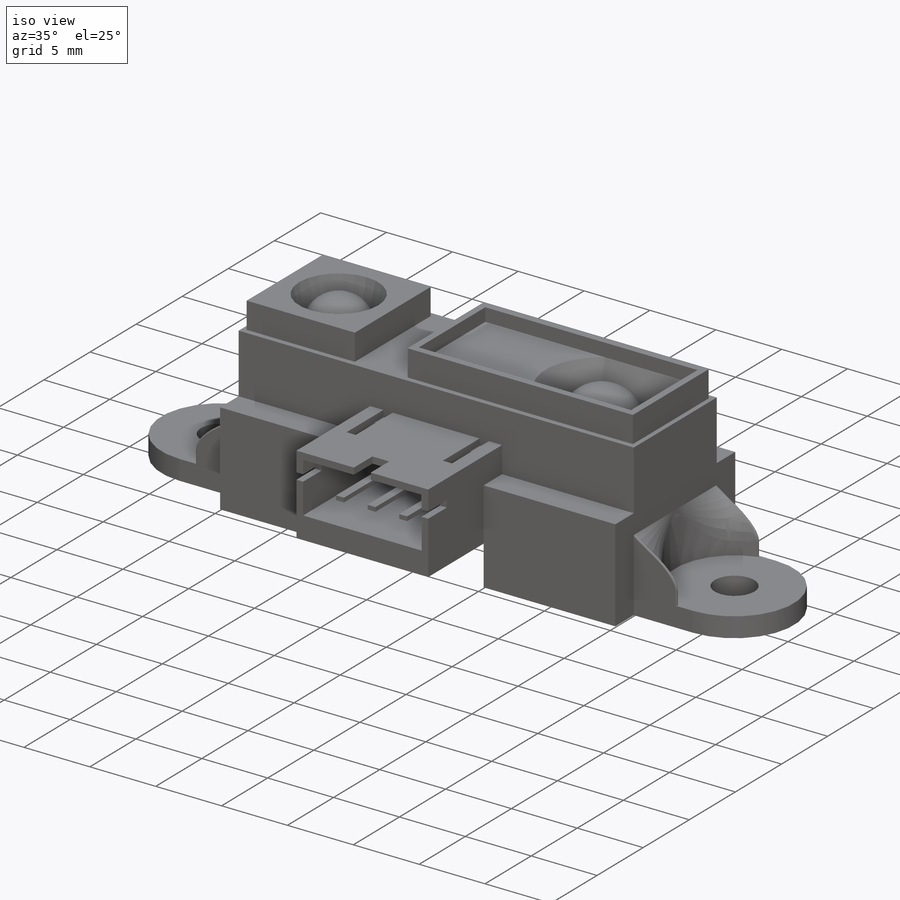
[diagram: iso view]
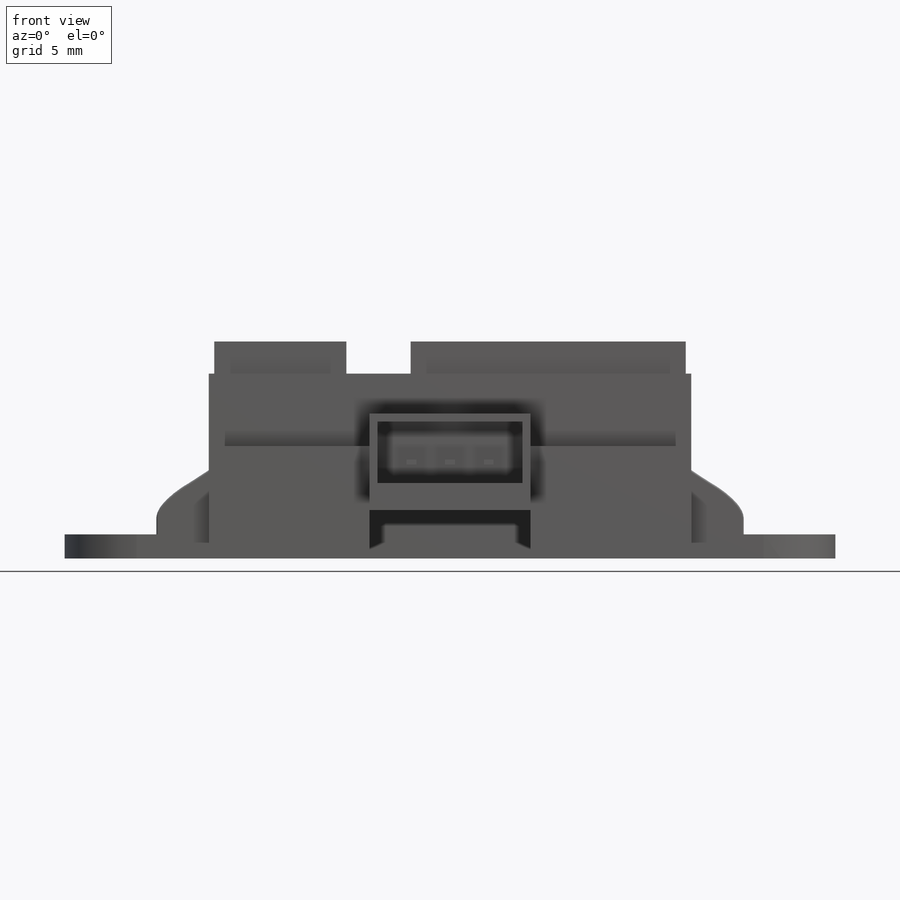
[diagram: front view]
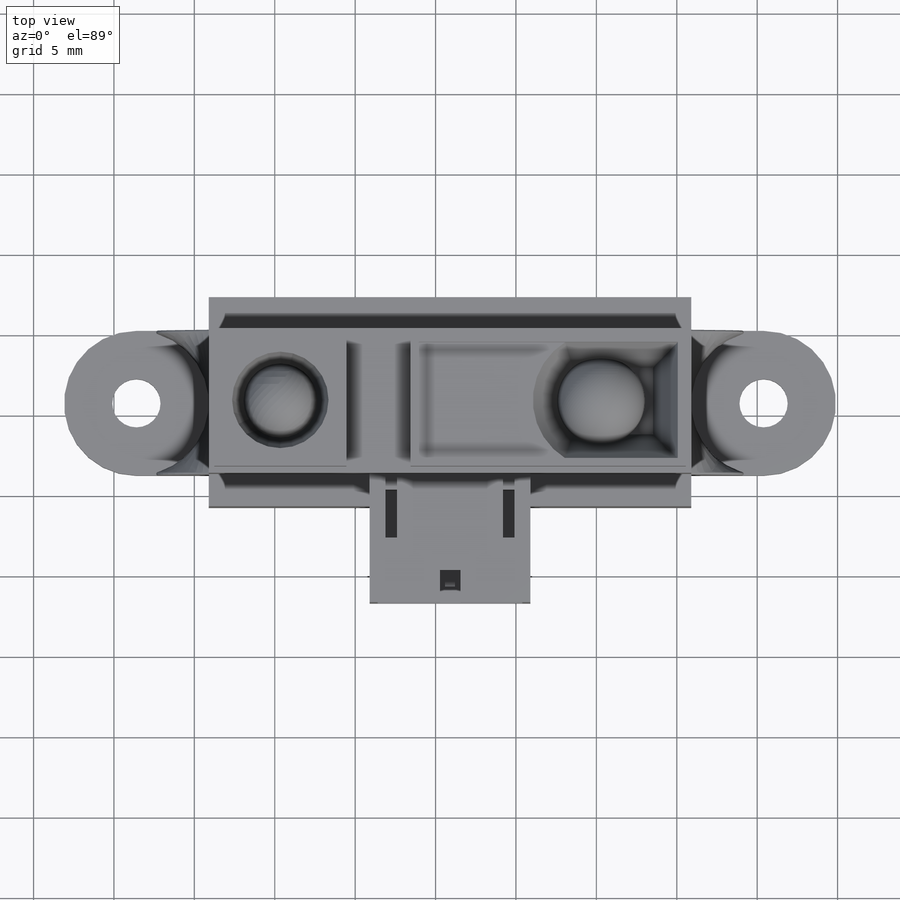
[diagram: top view]
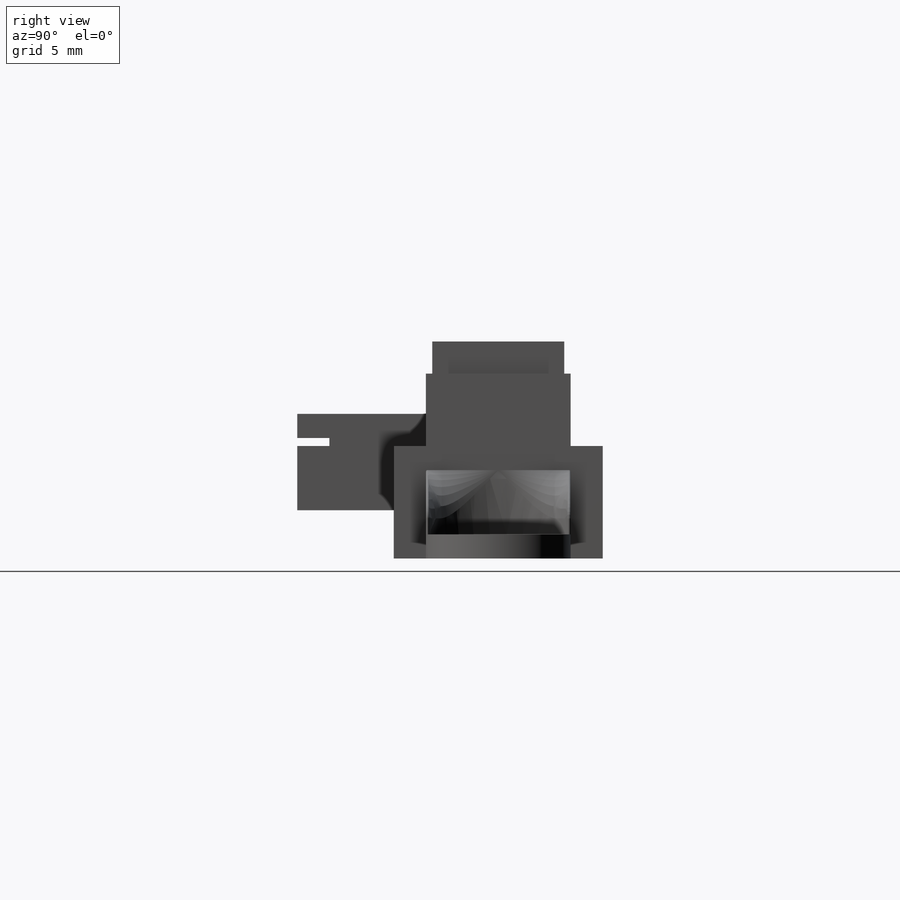
[diagram: right view]
SOLIDWORKS PART (.sldprt)
format: sldprt  version: not decoded by parser v0  size: 681,984 bytes
history: native  units: mm
features: sketch x19, cut_extrude x12, extrude x7, fillet x2, dome x2, material x1 (+13 scaffold rows collapsed)
feature tree (56):
  scaffold x13  (default folders/planes/origin — collapsed)
  material  "Material <not specified>"
  sketch  "Sketch1"  dims[D1=30.0mm D2=13.0mm]
  extrude  "Boss-Extrude1"  Depth=13.5mm
  sketch  "Sketch2"  dims[D1=2.0mm]
  cut_extrude  "Cut-Extrude1"  Depth=6.5mm
  sketch  "Sketch3"  dims[D1=4.0mm]
  cut_extrude  "Cut-Extrude2"  Depth=2mm
  sketch  "Sketch4"  dims[D1=6.0mm]
  cut_extrude  "Cut-Extrude3"  Depth=3mm
  sketch  "Sketch5"  dims[D1=0.5mm D2=0.5mm D3=0.5mm D4=0.5mm]
  cut_extrude  "Cut-Extrude4"  Depth=1mm
  sketch  "Sketch6"  dims[D1=7.0mm]
  cut_extrude  "Cut-Extrude5"  Depth=3mm
  sketch  "Sketch7"  dims[D2=~6.565099mm D1=4.5mm]
  extrude  "Boss-Extrude2"  Depth=5.5mm
  sketch  "Sketch9"
  cut_extrude  "Cut-Extrude6"  Depth=4mm
  sketch  "Sketch10"  dims[D1=3.0mm]
  cut_extrude  "Cut-Extrude7"  Depth=4mm
  fillet  "Fillet1"  Radius=3mm
  dome  "Dome1"
  sketch  "Sketch12"
  extrude  "Boss-Extrude3"  Depth=0.05mm
  dome  "Dome2"
  sketch  "Sketch13"  dims[D1=10.0mm D2=3.0mm D3=6.0mm]
  sketch  "Sketch14"  dims[D1=0.7mm D2=0.7mm D3=0.7mm D4=0.7mm]
  cut_extrude  "Cut-Extrude8"  Depth=3mm
  cut_extrude  "Cut-Extrude9"  Depth=3mm
  sketch  "Sketch15"  dims[D1=1.18mm]
  extrude  "Boss-Extrude4"  Depth=9mm
  sketch  "Sketch16"  dims[D1=0.5mm]
  extrude  "Boss-Extrude5"  Depth=9mm
  sketch  "Sketch17"  dims[D1=0.5mm]
  cut_extrude  "Cut-Extrude10"  Depth=2mm
  sketch  "Sketch18"  dims[D1=0.7mm D2=4.0mm]
  cut_extrude  "Cut-Extrude11"  Depth=0.5mm
  sketch  "Sketch19"
  extrude  "Boss-Extrude6"  Depth=2mm
  sketch  "Sketch20"  dims[D1=1.8mm D2=2.5mm]
  extrude  "Boss-Extrude7"  Depth=6mm
  sketch  "Sketch21"
  cut_extrude  "Cut-Extrude12"  [1 undecoded]
  fillet  "Fillet2"  Radius=0.1mm
decode coverage: 35 of 42 modeling features carry decoded parameters
note: ~ marks probable driven/reference dimensions
note: 1 parameter value undecoded
note: suppression state not decoded; provenance and decode notes live in map.json
